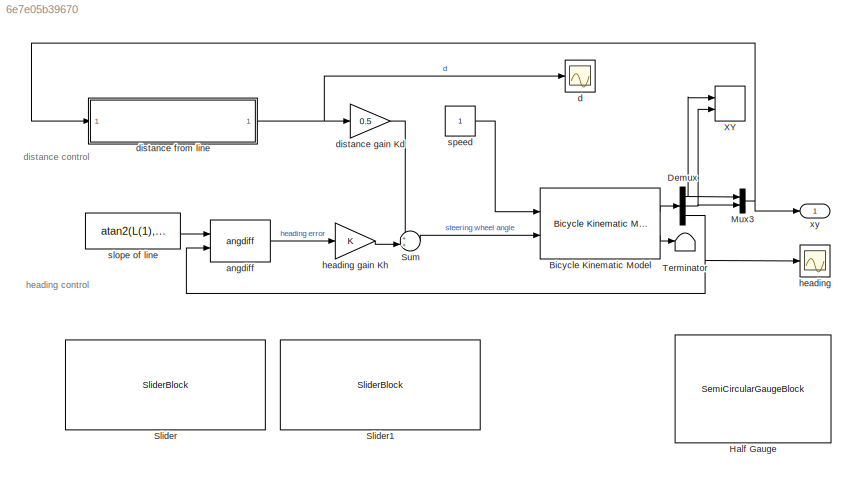
MODEL slx_6e7e05b39670
KIND model
CONFIG AbsTol = auto
CONFIG EnableMultiTasking = on
CONFIG FixedStep = auto
CONFIG InitFcn = if ~exist('x0')\n  x0 = [5 5 0];\n  msgbox(sprintf('x0 not defined in workspace, setting it to [%g %g %g]\n', x0));\nend\nif ~exist('L')\n  L = [1 -2 4];\n  msgbox(sprintf('L not defined in workspace, setting it to [%g %g %g]\n', L));\nend\n% clean up old vehicle icons\nset(0, 'ShowHiddenHandles', 'on')\ndelete(findobj('Tag', 'vehicle'))\nset(0, 'ShowHiddenHandles', 'off')
CONFIG MaxStep = auto
CONFIG MinStep = auto
CONFIG RelTol = 1e-3
CONFIG SampleTimeConstraint = Unconstrained
CONFIG SolverName = ode45
CONFIG StartTime = 0.0
CONFIG StopFcn = % update the XY scope\nset(0, 'ShowHiddenHandles', 'on')\nfig = findobj('name', 'XY');\nax = findobj(fig, 'type', 'axes');\naxes(ax)\ngrid on\nhold on\nplotvehicle(x0, 'r', 'Tag', 'vehicle')\nplothomline(L, 'r--', 'Tag', 'vehicle')\nhold off\nset(0, 'ShowHiddenHandles', 'off')
CONFIG StopTime = 15.0
BLOCK [Reference] Bicycle Kinematic Model  REF=robotmobilelib/Bicycle Kinematic Model
  Ports = [2, 2]
  SourceBlock = robotmobilelib/Bicycle Kinematic Model
  SourceProductBaseCode = RO
  SourceType = Bicycle Kinematic Model
BLOCK [Demux] Demux
  Outputs = 3
  Ports = [1, 3]
BLOCK [SemiCircularGaugeBlock] Half Gauge
  LabelPosition = Bottom
  ScaleMax = 1
  ScaleMin = -1
BLOCK [Mux] Mux3
  DisplayOption = bar
  Inputs = 2
  Ports = [2, 1]
BLOCK [SliderBlock] Slider
  LabelPosition = Bottom
  ScaleMax = 1
BLOCK [SliderBlock] Slider1
  LabelPosition = Bottom
  ScaleMax = 2
BLOCK [Sum] Sum
  Inputs = ++|
  Ports = [2, 1]
BLOCK [Terminator] Terminator
BLOCK [Record] XY
  CompatibilityTag = XY
  FileSettingsInternal = {"entries":[{"content":{"excelSettings":{"content":{},"type":"Streamout.ExcelSettings"}},"type":"Streamout.FileSettingStorage","uuid":"787d89fb-9713-4c7c-bb97-8177175eeb27"}],"packageUris":["http://schema.mathworks.com/mf0/streamout_blocks/R2020a"],"version":"1.0"}
  Layout = [1 1]
  Ports = [2]
  SignalsInternal = {"entries":[{"content":{"signals":[{"content":{"blockPath":["sl_driveline/XY"],"channel":[],"dimensions":[1],"domain":"sl_driveline/XY","lineColor":"#a2142f","plots":[1],"port":1,"sid":[""],"signalID":703,"signalName":"Demux:1"},"type":"RecordBlkView.Signal","uuid":"2bf62f3f-00f3-4496-93c3-fffd00b02be8"},{"content":{"blockPath":["sl_driveline/XY"],"channel":[],"dimensions":[1],"domain":"sl_driveli...<+353ch>
  VisualizationBindings = {"xyplotplugin":{"info":[{"series":[{"bindingParametersList":[{"parameter":"X-Axis","signalID":703,"signalName":"Demux:1"},{"parameter":"Y-Axis","signalID":707,"signalName":"Demux:2"}],"seriesID":32389}],"subplotID":1}]}}
  st = -1
BLOCK [Reference] angdiff  REF=roblocks/angdiff  (lib defined in mdl_2a292b13c81b, mdl_69400f8cfe22, +12 more)
  Ports = [2, 1]
  SourceBlock = roblocks/angdiff
BLOCK [Scope] d
  Floating = off
  NumInputPorts = 1
  Ports = [1]
  ScopeSpecificationString = Simulink.scopes.TimeScopeBlockCfg('CurrentConfiguration', extmgr.ConfigurationSet(extmgr.Configuration('Core','General UI',true),extmgr.Configuration('Core','Source UI',true),extmgr.Configuration('Sources','WiredSimulink',true,'DataLoggingVariableName','ScopeData1','DataLoggingSaveFormat','StructureWithTime','DataLoggingDecimation','1'),extmgr.Configuration('Visuals','Time Domain',true,'Serialized...<+1731ch>
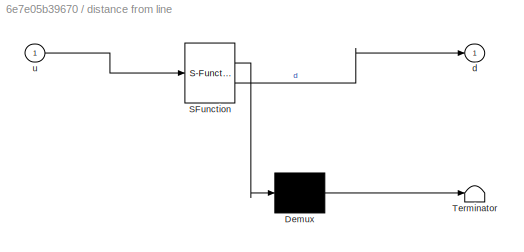
BLOCK [SubSystem] distance from line
  ErrorFcn = Stateflow.Translate.translate
  PermitHierarchicalResolution = ExplicitOnly
  Ports = [1, 1]
  RequestExecContextInheritance = off
  SFBlockType = MATLAB Function
  TreatAsAtomicUnit = on
BLOCK [Demux] distance from line/ Demux 
  Outputs = 1
  Ports = [1, 1]
BLOCK [S-Function] distance from line/ SFunction 
  EnableBusSupport = on
  FunctionName = sf_sfun
  PortCounts = [1 2]
  Ports = [1, 2]
  SFcnIsStateOwnerBlock = off
  SFunctionDeploymentMode = off
  Tag = Stateflow S-Function 2
BLOCK [Terminator] distance from line/ Terminator 
BLOCK [Outport] distance from line/d
BLOCK [Inport] distance from line/u
BLOCK [Gain] distance gain Kd
  Gain = 0.5
BLOCK [Scope] heading
  Floating = off
  NumInputPorts = 1
  Ports = [1]
  ScopeSpecificationString = Simulink.scopes.TimeScopeBlockCfg('CurrentConfiguration', extmgr.ConfigurationSet(extmgr.Configuration('Core','General UI',true),extmgr.Configuration('Core','Source UI',true),extmgr.Configuration('Sources','WiredSimulink',true,'DataLoggingSaveFormat','StructureWithTime','DataLoggingDecimation','1'),extmgr.Configuration('Visuals','Time Domain',true,'SerializedDisplays',{struct('MinYLimReal','0.2503...<+1689ch>
BLOCK [Gain] heading gain Kh
BLOCK [Constant] slope of line
  Value = atan2(L(1),-L(2))
BLOCK [Constant] speed
  SampleTime = 0.02
  VectorParams1D = off
BLOCK [Outport] xy
  VectorParamsAs1DForOutWhenUnconnected = off
ANNOTATION (root): distance control
ANNOTATION (root): heading control
LINE Bicycle Kinematic Model:1 -> Demux:1
LINE Bicycle Kinematic Model:2 -> Terminator:1
NET Demux:1 -> Mux3:1, XY:1
NET Demux:2 -> Mux3:2, XY:2
NET Demux:3 -> angdiff:2, heading:1
NET Mux3:1 -> distance from line:1, xy:1
LINE Sum:1 -> Bicycle Kinematic Model:2
LINE angdiff:1 -> heading gain Kh:1
NET distance from line:1 -> d:1, distance gain Kd:1
LINE distance gain Kd:1 -> Sum:1
LINE heading gain Kh:1 -> Sum:2
LINE slope of line:1 -> angdiff:1
LINE speed:1 -> Bicycle Kinematic Model:1
note: NET lines group one-source signal fan-out (src -> all destinations, sorted); 1:1 wires keep LINE
CHART distance from line states=1 transitions=1
  STATE_LABEL 'eML_blk_kernel()'
  STATE_LABEL 'SCRIPT:\nfunction d = distFromLine(u)\n\npersistent L\n\n% Get value for variable L from base workspace\n% only do this once, since L is constants.\nif isempty(L)\n    L = coder.const(feval("evalin", "base", "L"));\nend\nd = dot([u(1) u(2) 1], L) / norm(L(1:2));\n\nend'
CHART  states=0 transitions=0
